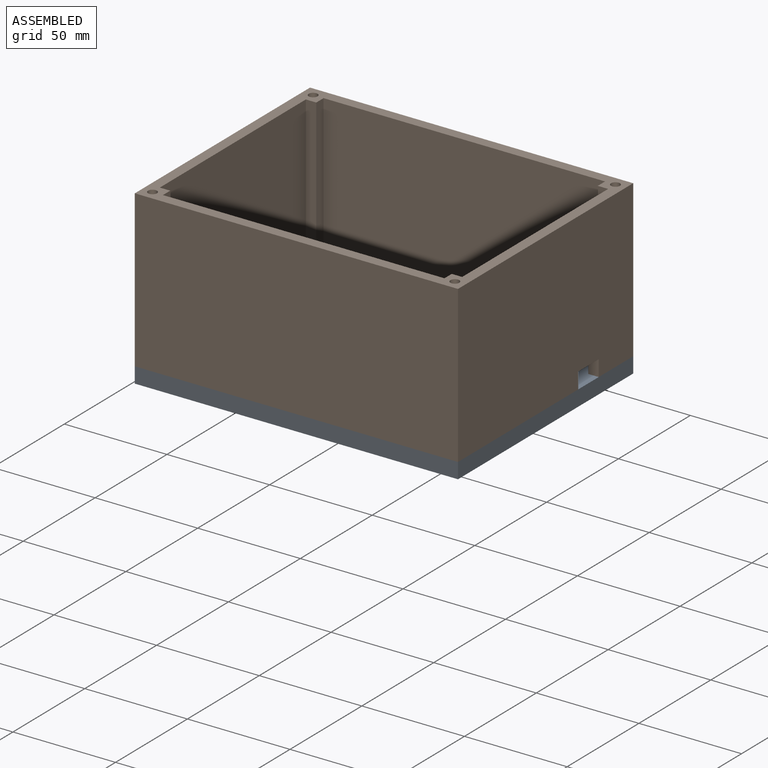
[diagram: assembled view]
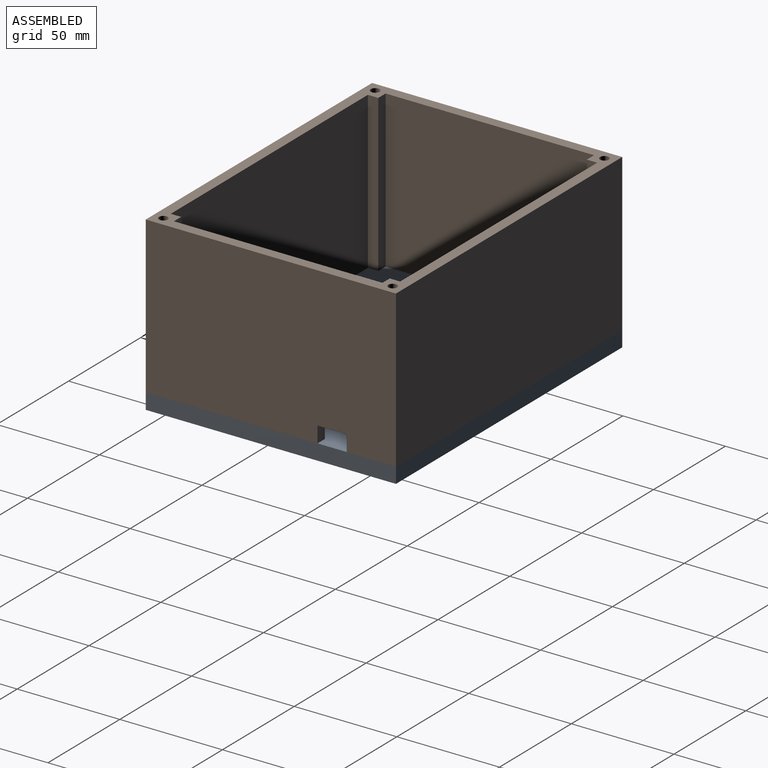
[diagram: assembled view, second angle]
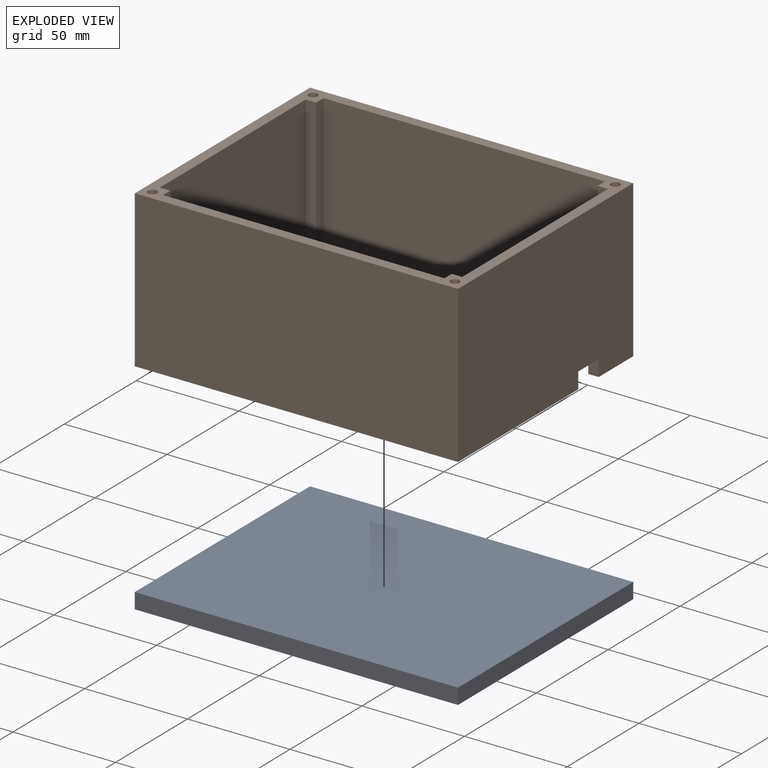
[diagram: exploded view]
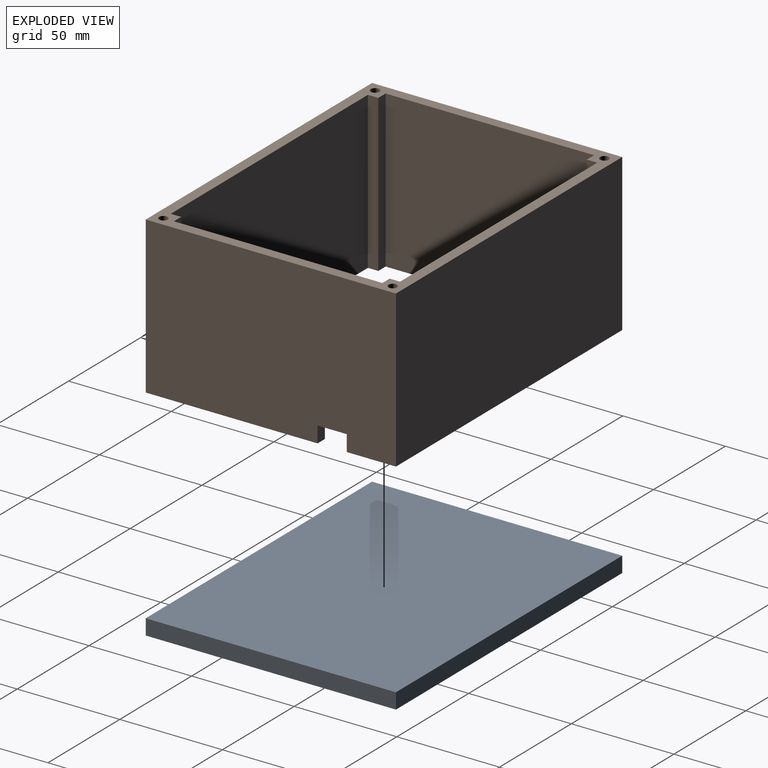
[diagram: exploded view, second angle]
ASSEMBLY  parts=2 mates=2
PART A: 6 faces, bbox 157.5x121.9x7.6 mm
  f0: plane 157.48x7.62mm, normal (0,1,0), area 1200mm2, adj f1,f3,f4,f5
  f1: plane 121.92x7.62mm, normal (-1,0,0), area 929mm2, adj f0,f2,f4,f5
  f2: plane 157.48x7.62mm, normal (0,-1,0), area 1200mm2, adj f1,f3,f4,f5
  f3: plane 121.92x7.62mm, normal (1,0,0), area 929mm2, adj f0,f2,f4,f5
  f4: plane 157.48x121.92mm, normal (0,0,1), area 19200mm2, adj f0,f1,f2,f3
  f5: plane 157.48x121.92mm, normal (0,0,-1), area 19200mm2, adj f0,f1,f2,f3
PART B: 25 faces, bbox 157.5x121.9x76.2 mm
  f0: plane 157.48x76.2mm, normal (0,1,0), area 12000mm2, adj f1,f19,f20,f21
  f1: plane 121.92x76.2mm, normal (-1,0,0), area 9290.3mm2, adj f0,f2,f20,f21
  f2: plane 157.48x76.2mm, normal (0,-1,0), area 12000mm2, adj f1,f19,f20,f21
  f3: plane 137.16x76.2mm, normal (0,-1,0), area 10451.6mm2, adj f4,f18,f20,f21
  f4: plane 76.2x5.08mm, normal (-1,0,0), area 387.1mm2, adj f3,f5,f20,f21
  f5: plane 76.2x5.08mm, normal (0,-1,0), area 387.1mm2, adj f4,f6,f20,f21
  f6: plane 101.6x76.2mm, normal (-1,0,0), area 7629.9mm2, adj f5,f7,f20,f21,f22,f23,f24
  f7: plane 76.2x5.08mm, normal (0,1,0), area 387.1mm2, adj f6,f8,f20,f21
  f8: plane 76.2x5.08mm, normal (-1,0,0), area 387.1mm2, adj f7,f9,f20,f21
  f9: plane 137.16x76.2mm, normal (0,1,0), area 10451.6mm2, adj f8,f10,f20,f21
  f10: plane 76.2x5.08mm, normal (1,0,0), area 387.1mm2, adj f9,f11,f20,f21
  f11: plane 76.2x5.08mm, normal (0,1,0), area 387.1mm2, adj f10,f12,f20,f21
  f12: plane 101.6x76.2mm, normal (1,0,0), area 7741.9mm2, adj f11,f13,f20,f21
  f13: plane 76.2x5.08mm, normal (0,-1,0), area 387.1mm2, adj f12,f18,f20,f21
  f14: cylinder r=2.16mm len=76.2mm, axis (0,0,-1), area 1033.7mm2, adj f20,f21
  f15: cylinder r=2.16mm len=76.2mm, axis (0,0,-1), area 1033.7mm2, adj f20,f21
  f16: cylinder r=2.16mm len=76.2mm, axis (0,0,-1), area 1033.7mm2, adj f20,f21
  f17: cylinder r=2.16mm len=76.2mm, axis (0,0,-1), area 1033.7mm2, adj f20,f21
  f18: plane 76.2x5.08mm, normal (1,0,0), area 387.1mm2, adj f3,f13,f20,f21
  f19: plane 121.92x76.2mm, normal (1,0,0), area 9178.3mm2, adj f0,f2,f20,f21,f22,f23,f24
  f20: plane 157.48x121.92mm, normal (0,0,1), area 2780.1mm2, adj f0,f1,f2,f3,f4,f5,f6,f7
  f21: plane 157.48x121.92mm, normal (0,0,-1), area 2707.9mm2, adj f0,f1,f2,f3,f4,f5,f6,f7
  f22: plane 14.22x5.08mm, normal (0,0,-1), area 72.3mm2, adj f6,f19,f23,f24
  f23: plane 7.87x5.08mm, normal (0,-1,0), area 40mm2, adj f6,f19,f21,f22
  f24: plane 7.87x5.08mm, normal (0,1,0), area 40mm2, adj f6,f19,f21,f22
PLACE A t=(56.16,-21.96,-45.91)mm
PLACE B t=(56.16,-21.96,-38.29)mm
MATE fastened B.f21 <-> A.f4  axis (0,0,-1) through (134.9,-82.92,-38.29)mm
MATE planar A.f4 <-> B.f21  axis (0,0,1) through (56.16,-21.96,-38.29)mm
